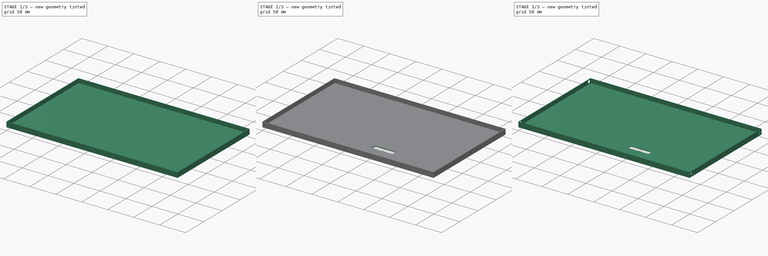
[diagram: build sequence overview — one tinted view per stage of 3, left to right]
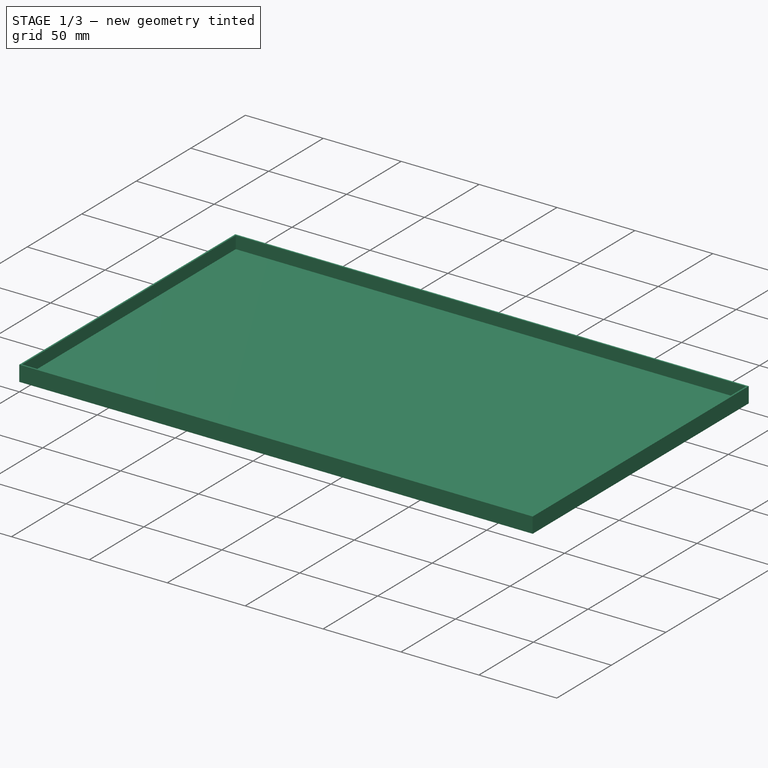
[diagram: stage 1 of 3 — iso view after this stage's code; geometry added in this stage tinted green]
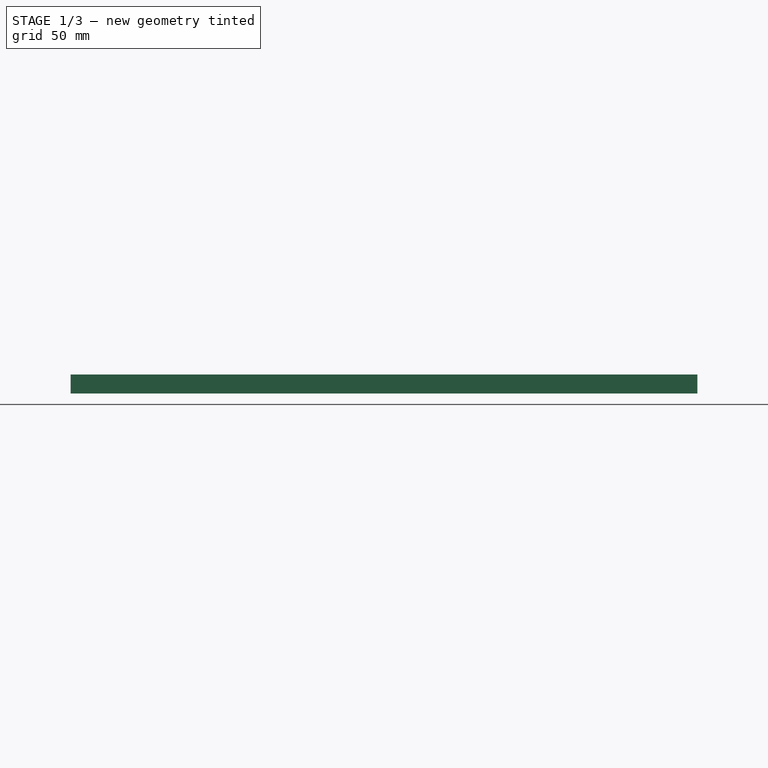
[diagram: stage 1 of 3 — front view after this stage's code; geometry added in this stage tinted green]
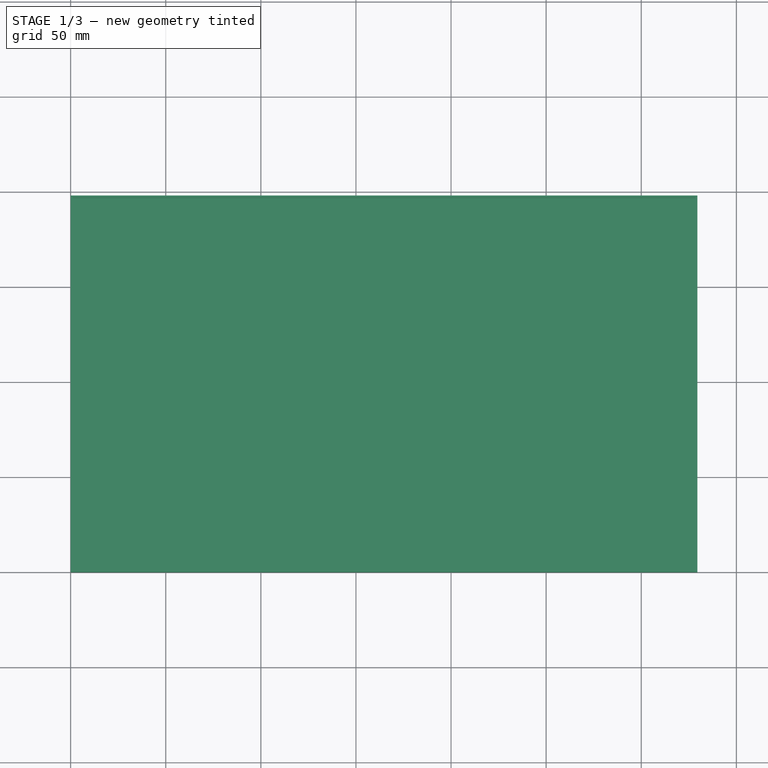
[diagram: stage 1 of 3 — top view after this stage's code; geometry added in this stage tinted green]
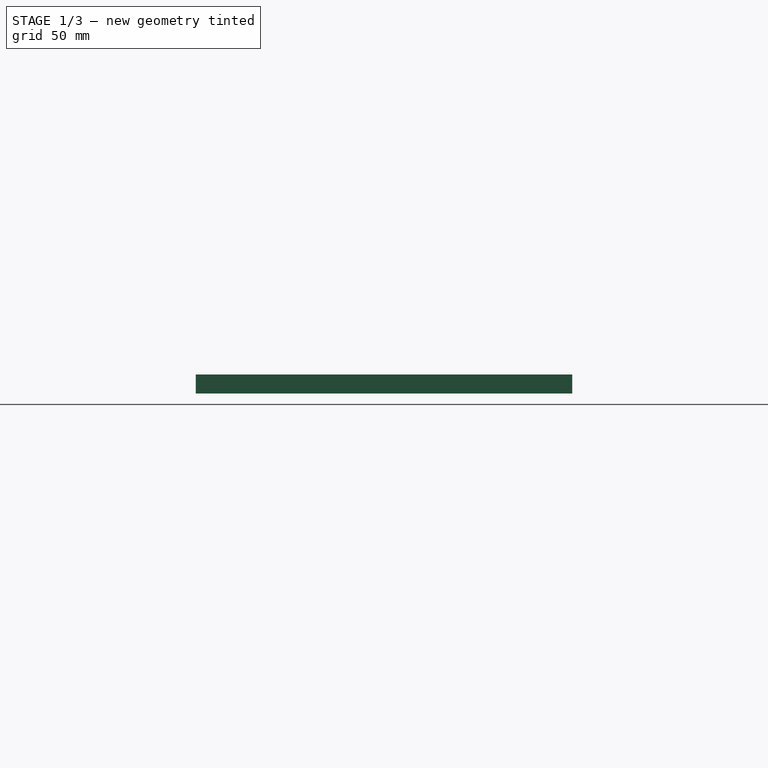
[diagram: stage 1 of 3 — right view after this stage's code; geometry added in this stage tinted green]
FCSTD DOCUMENT  (FreeCAD 0.18.4R)
Label: monitor_cradle_back
License: All rights reserved
LicenseURL: http://en.wikipedia.org/wiki/All_rights_reserved
objects: Sketcher::SketchObject×5, PartDesign::Chamfer×3, PartDesign::Pad×2, PartDesign::Pocket×2, PartDesign::Body×1
note: 17 computed .brp shape members not serialized (recipe doc carries the construction recipe); baked Part::Feature solids carry a one-line shape summary decoded from their .brp

FEATURE [Sketcher::SketchObject] Sketch
  MapMode = 5
  Support = -> [XY_Plane]
  sketch-geometry (8):
    g0: LineSegment StartX=1 StartY=1 StartZ=0 EndX=328.5 EndY=1 EndZ=0
    g1: LineSegment StartX=328.5 StartY=1 StartZ=0 EndX=328.5 EndY=197 EndZ=0
    g2: LineSegment StartX=328.5 StartY=197 StartZ=0 EndX=1 EndY=197 EndZ=0
    g3: LineSegment StartX=1 StartY=197 StartZ=0 EndX=1 EndY=1 EndZ=0
    g4: LineSegment StartX=0 StartY=0 StartZ=0 EndX=329.5 EndY=0 EndZ=0
    g5: LineSegment StartX=329.5 StartY=0 StartZ=0 EndX=329.5 EndY=198 EndZ=0
    g6: LineSegment StartX=329.5 StartY=198 StartZ=0 EndX=0 EndY=198 EndZ=0
    g7: LineSegment StartX=0 StartY=198 StartZ=0 EndX=0 EndY=0 EndZ=0
  constraints (23):
    c: Coincident(g0,g1)
    c: Coincident(g1,g2)
    c: Coincident(g2,g3)
    c: Coincident(g3,g0)
    c: Horizontal(g0)
    c: Horizontal(g2)
    c: Vertical(g1)
    c: Vertical(g3)
    c: Distance(g3) = 196  'Interior Side'
    c: Distance(g0) = 327.5  'Interior Top and Bottom'
    c: Coincident(g4,g5)
    c: Coincident(g5,g6)
    c: Coincident(g6,g7)
    c: Coincident(g7,g4)
    c: Horizontal(g4)
    c: Horizontal(g6)
    c: Vertical(g5)
    c: Vertical(g7)
    c: DistanceY(g7,g7) = 198  'Exterior Side'
    c: Distance(g4) = 329.5  'Exterior Top and Bottom'
    c: DistanceY(g4,g0) = 1
    c: DistanceX(g4,g0) = 1
    c: Coincident(g4,g-1)
FEATURE [PartDesign::Pad] Pad  label="Walls"
  Length = 8
  Length2 = 100
  Profile = -> Sketch
  Type = 0
FEATURE [Sketcher::SketchObject] Sketch001
  MapMode = 5
  Placement = pos=(0,0,0) rot=(1,0,0;3.14159rad)
  Support = -> [Pad]
  sketch-geometry (4):
    g0: LineSegment StartX=0 StartY=-198 StartZ=0 EndX=329.5 EndY=-198 EndZ=0
    g1: LineSegment StartX=329.5 StartY=-198 StartZ=0 EndX=329.5 EndY=0 EndZ=0
    g2: LineSegment StartX=329.5 StartY=0 StartZ=0 EndX=0 EndY=0 EndZ=0
    g3: LineSegment StartX=0 StartY=0 StartZ=0 EndX=0 EndY=-198 EndZ=0
  constraints (11):
    c: Coincident(g0,g1)
    c: Coincident(g1,g2)
    c: Coincident(g2,g3)
    c: Coincident(g3,g0)
    c: Horizontal(g0)
    c: Horizontal(g2)
    c: Vertical(g1)
    c: Vertical(g3)
    c: Distance(g2) = 329.5  'Bottom Panel Top and Sides'
    c: Distance(g3) = 198
    c: Coincident(g2,g-1)
FEATURE [PartDesign::Pad] Pad001  label="Base"
  BaseFeature = -> Pad
  Length = 2
  Length2 = 100
  Profile = -> Sketch001
  Type = 0
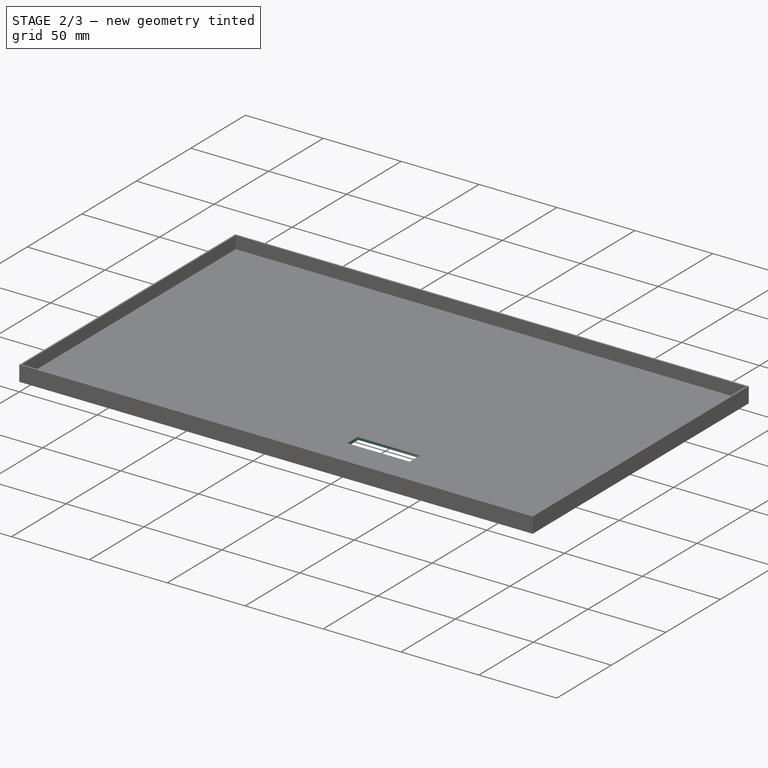
[diagram: stage 2 of 3 — iso view after this stage's code; geometry added in this stage tinted green]
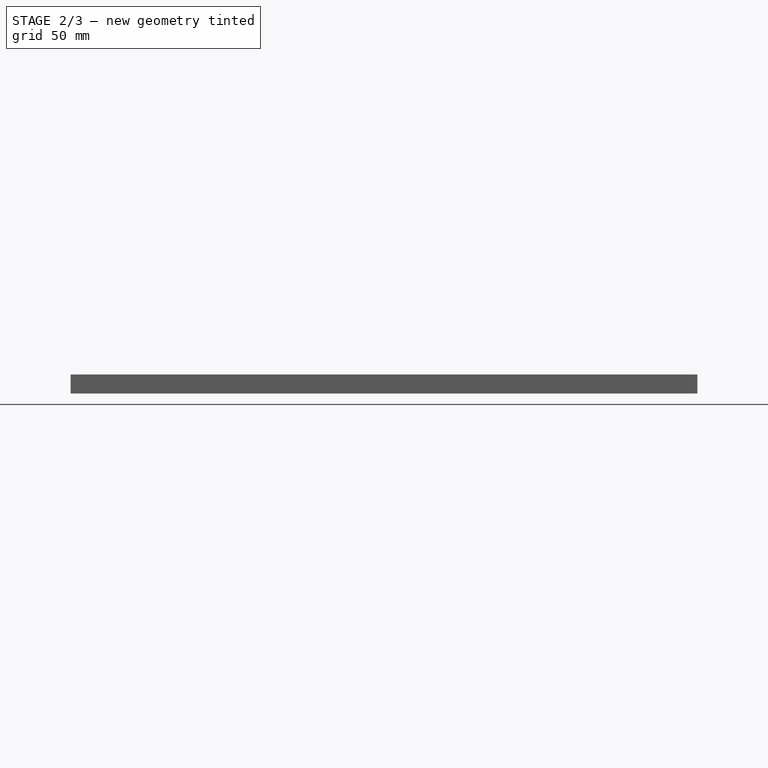
[diagram: stage 2 of 3 — front view after this stage's code; geometry added in this stage tinted green]
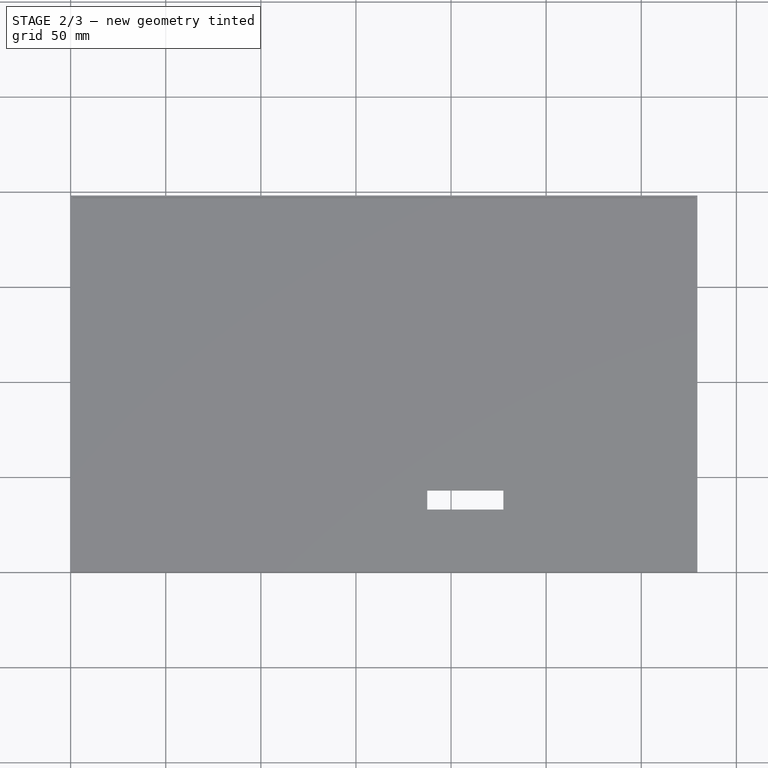
[diagram: stage 2 of 3 — top view after this stage's code; geometry added in this stage tinted green]
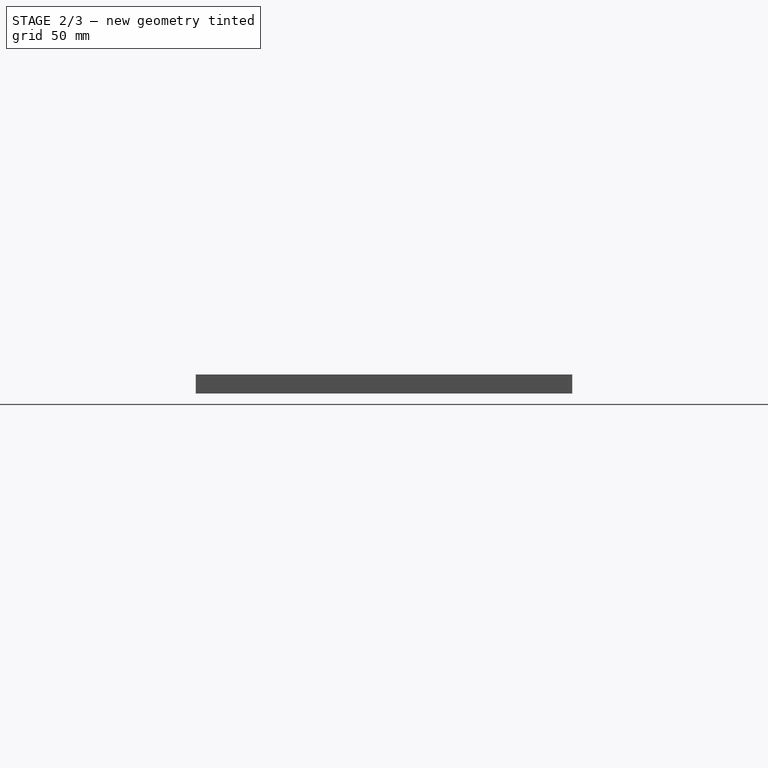
[diagram: stage 2 of 3 — right view after this stage's code; geometry added in this stage tinted green]
FEATURE [Sketcher::SketchObject] Sketch002
  ExternalGeometry = -> [Pad001]
  MapMode = 5
  Support = -> [Pad001]
  sketch-geometry (4):
    g0: LineSegment StartX=187.5 StartY=43 StartZ=0 EndX=227.5 EndY=43 EndZ=0
    g1: LineSegment StartX=227.5 StartY=43 StartZ=0 EndX=227.5 EndY=33 EndZ=0
    g2: LineSegment StartX=227.5 StartY=33 StartZ=0 EndX=187.5 EndY=33 EndZ=0
    g3: LineSegment StartX=187.5 StartY=33 StartZ=0 EndX=187.5 EndY=43 EndZ=0
  constraints (12):
    c: Coincident(g0,g1)
    c: Coincident(g1,g2)
    c: Coincident(g2,g3)
    c: Coincident(g3,g0)
    c: Horizontal(g0)
    c: Horizontal(g2)
    c: Vertical(g1)
    c: Vertical(g3)
    c: Distance(g2) = 40
    c: Distance(g3) = 10
    c: DistanceY(g-1,g2) = 33
    c: DistanceX(g1,g-3) = 102
FEATURE [PartDesign::Pocket] Pocket  label="Cable Hole"
  BaseFeature = -> Pad001
  Length = 5
  Length2 = 100
  Profile = -> Sketch002
  Type = 1
FEATURE [PartDesign::Chamfer] Chamfer
  Base = -> Pocket [Edge40]
  BaseFeature = -> Pocket
  Size = 0.15
FEATURE [PartDesign::Chamfer] Chamfer001
  Base = -> Chamfer [Edge18]
  BaseFeature = -> Chamfer
  Size = 0.5
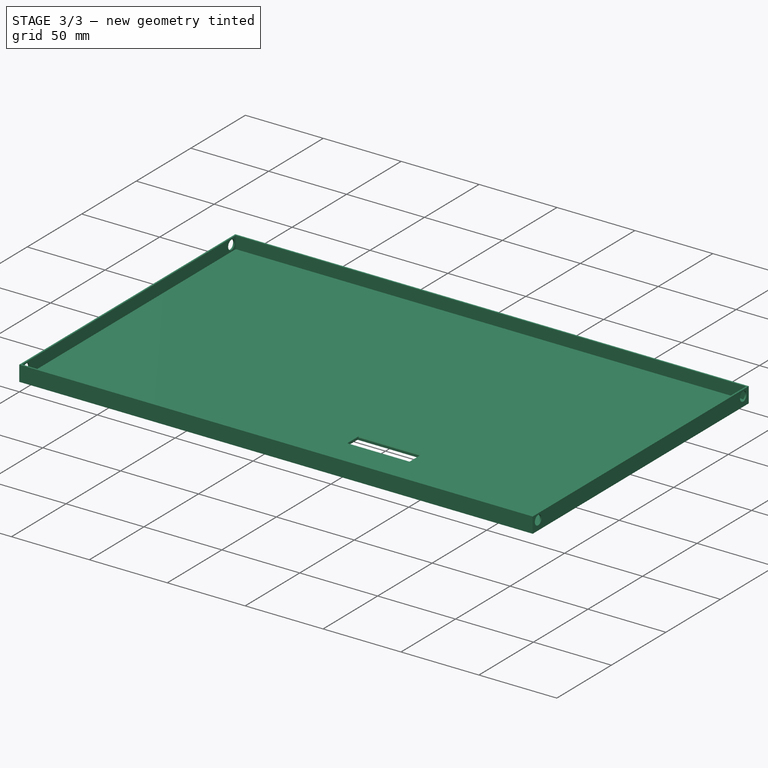
[diagram: stage 3 of 3 — iso view after this stage's code; geometry added in this stage tinted green]
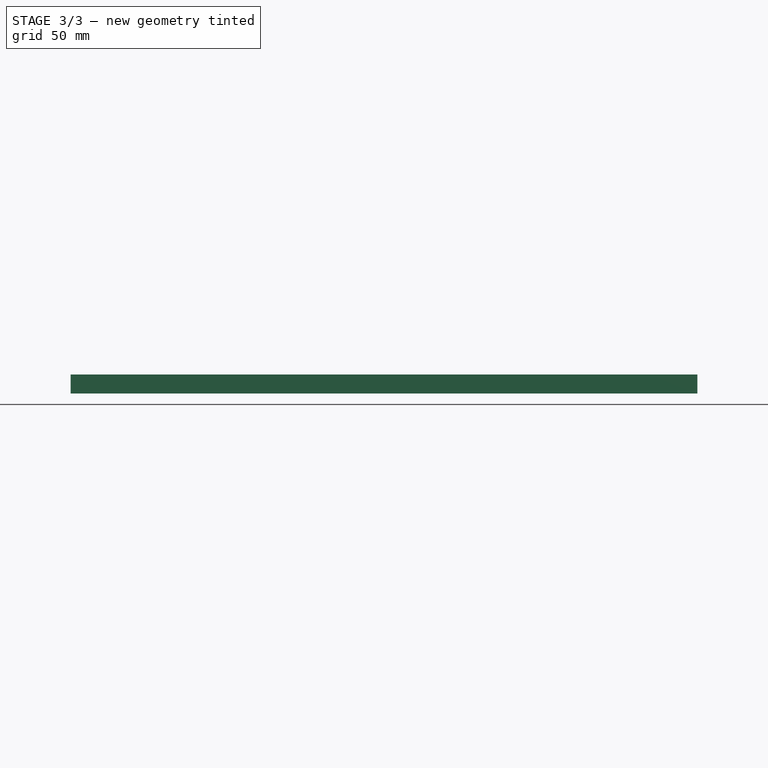
[diagram: stage 3 of 3 — front view after this stage's code; geometry added in this stage tinted green]
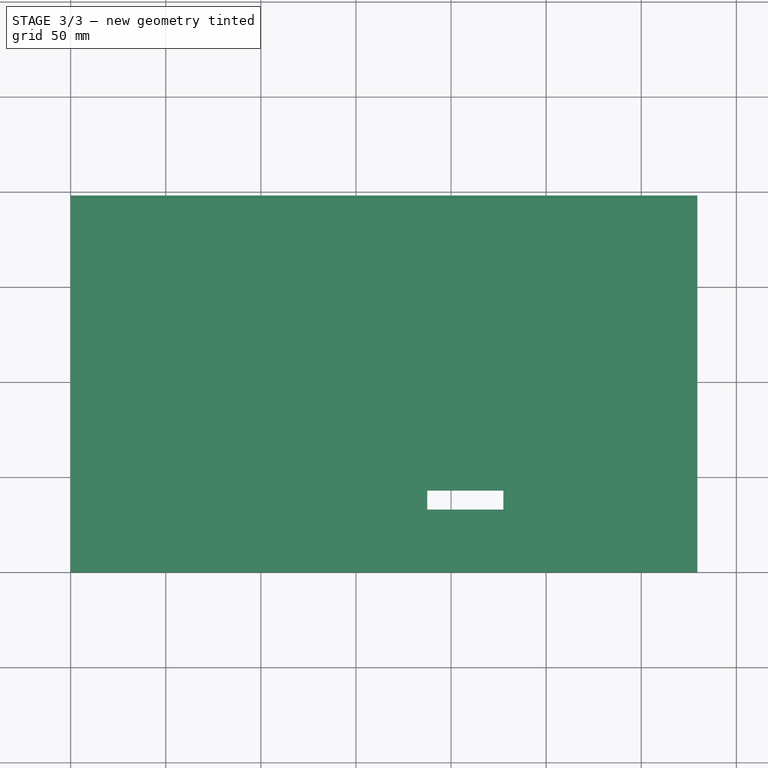
[diagram: stage 3 of 3 — top view after this stage's code; geometry added in this stage tinted green]
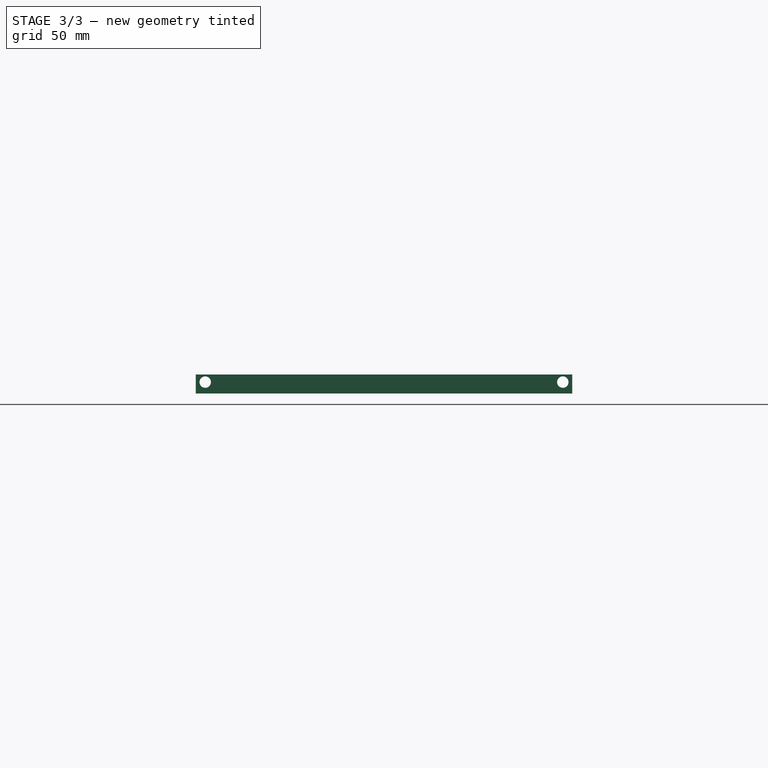
[diagram: stage 3 of 3 — right view after this stage's code; geometry added in this stage tinted green]
FEATURE [PartDesign::Chamfer] Chamfer002
  Base = -> Chamfer001 [Edge19,Edge3]
  BaseFeature = -> Chamfer001
  Size = 0.5
FEATURE [Sketcher::SketchObject] Sketch003
  ExternalGeometry = -> [Chamfer002]
  MapMode = 5
  Placement = pos=(0,0,0) rot=(0.57735,-0.57735,-0.57735;2.0944rad)
  Support = -> [Chamfer002]
  sketch-geometry (2):
    g0: Circle CenterX=-193 CenterY=4 CenterZ=0 NormalX=0 NormalY=0 NormalZ=1 AngleXU=0 Radius=3
    g1: Circle CenterX=-5 CenterY=4 CenterZ=0 NormalX=0 NormalY=0 NormalZ=1 AngleXU=0 Radius=3
  constraints (6):
    c: Radius(g0) = 3
    c: Radius(g1) = 3
    c: DistanceX(g-5,g0) = 5
    c: DistanceX(g1,g-4) = 5
    c: DistanceY(g0,g-5) = 4
    c: DistanceY(g1,g-4) = 4
FEATURE [PartDesign::Pocket] Pocket001  label="Peg Holes"
  BaseFeature = -> Chamfer002
  Length = 5
  Length2 = 100
  Profile = -> Sketch003
  Type = 1
FEATURE [Sketcher::SketchObject] Sketch004
  MapMode = 5
  Support = -> [XY_Plane]
  sketch-geometry (12):
    g0: LineSegment StartX=1 StartY=97 StartZ=0 EndX=162.75 EndY=97 EndZ=0
    g1: LineSegment StartX=162.75 StartY=97 StartZ=0 EndX=162.75 EndY=1 EndZ=0
    g2: LineSegment StartX=1 StartY=101 StartZ=0 EndX=162.75 EndY=101 EndZ=0
    g3: LineSegment StartX=1 StartY=101 StartZ=0 EndX=1 EndY=97 EndZ=0
    g4: LineSegment StartX=162.75 StartY=197 StartZ=0 EndX=162.75 EndY=101 EndZ=0
    g5: LineSegment StartX=162.75 StartY=197 StartZ=0 EndX=166.75 EndY=197 EndZ=0
    g6: LineSegment StartX=166.75 StartY=197 StartZ=0 EndX=166.75 EndY=101 EndZ=0
    g7: LineSegment StartX=166.75 StartY=101 StartZ=0 EndX=328.5 EndY=101 EndZ=0
    g8: LineSegment StartX=328.5 StartY=101 StartZ=0 EndX=328.5 EndY=97 EndZ=0
    g9: LineSegment StartX=166.75 StartY=97 StartZ=0 EndX=328.5 EndY=97 EndZ=0
    g10: LineSegment StartX=166.75 StartY=97 StartZ=0 EndX=166.75 EndY=1 EndZ=0
    g11: LineSegment StartX=163.24 StartY=7.05495 StartZ=0 EndX=167.24 EndY=7.05495 EndZ=0
  constraints (36):
    c: Horizontal(g0)
    c: DistanceX(g0,g0) = 161.75
    c: DistanceX(g-1,g0) = 1
    c: Vertical(g1)
    c: Coincident(g0,g1)
    c: DistanceY(g1,g1) = 96
    c: DistanceY(g-1,g1) = 1
    c: Equal(g2,g0)
    c: Horizontal(g2)
    c: DistanceY(g0,g2) = 4
    c: Coincident(g2,g3)
    c: Coincident(g0,g3)
    c: Vertical(g3)
    c: Vertical(g4)
    c: Coincident(g4,g2)
    c: Equal(g4,g1)
    c: Horizontal(g5)
    c: Coincident(g5,g4)
    c: Equal(g5,g3)
    c: Coincident(g5,g6)
    c: Vertical(g6)
    c: Equal(g6,g4)
    c: Horizontal(g7)
    c: Equal(g7,g0)
    c: Coincident(g6,g7)
    c: DistanceY(g8,g8) = 4
    c: Coincident(g8,g7)
    c: Vertical(g8)
    c: Coincident(g9,g8)
    c: Horizontal(g9)
    c: Equal(g9,g0)
    c: Vertical(g10)
    c: Coincident(g9,g10)
    c: Equal(g10,g1)
    c: Horizontal(g11)
    c: DistanceX(g11,g11) = 4
FEATURE [PartDesign::Body] Body
  Group = -> [Sketch,Pad,Sketch001,Pad001,Sketch002,Pocket,Chamfer,Chamfer001,Chamfer002,Sketch003,Pocket001,Sketch004]
  Origin = -> Origin
  Tip = -> Pocket001
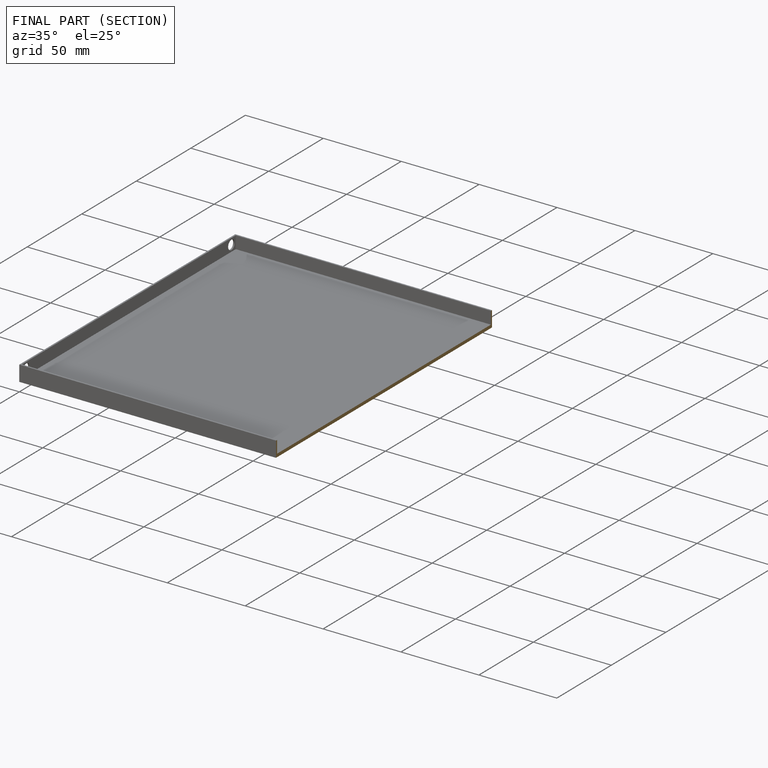
[diagram: finished part — half-section view (interior)]
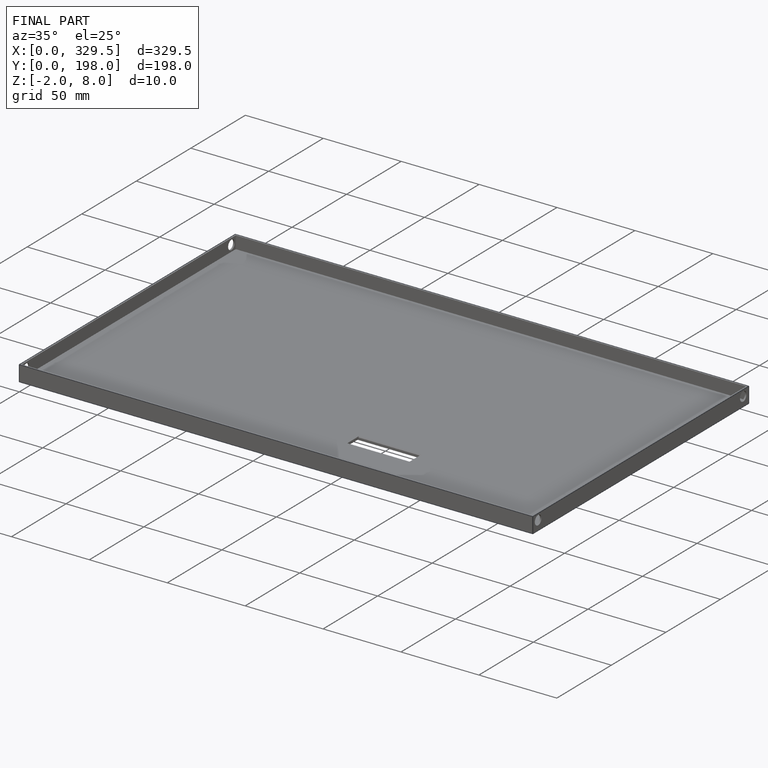
[diagram: finished part — iso view with bounding-box wireframe]
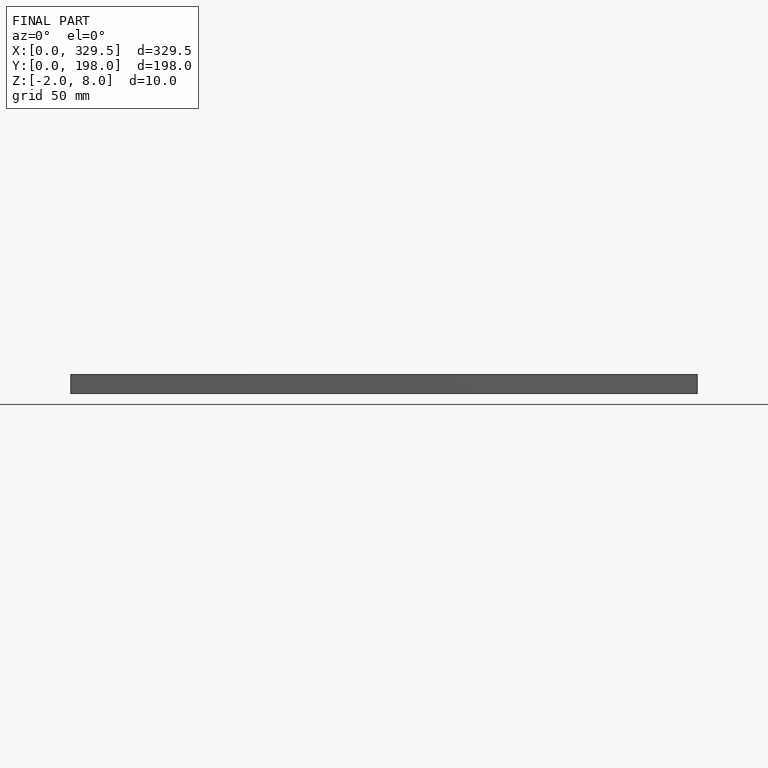
[diagram: finished part — front view with bounding-box wireframe]
